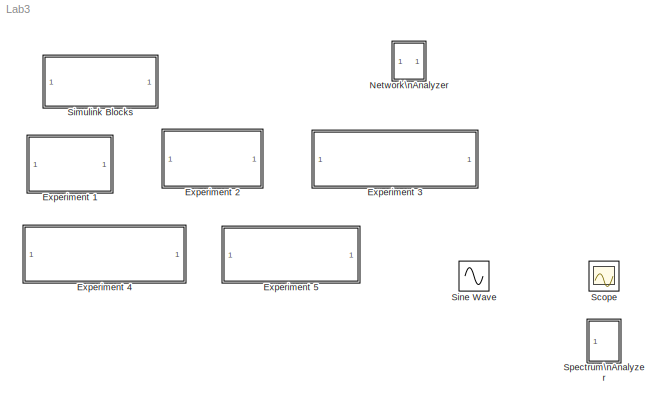
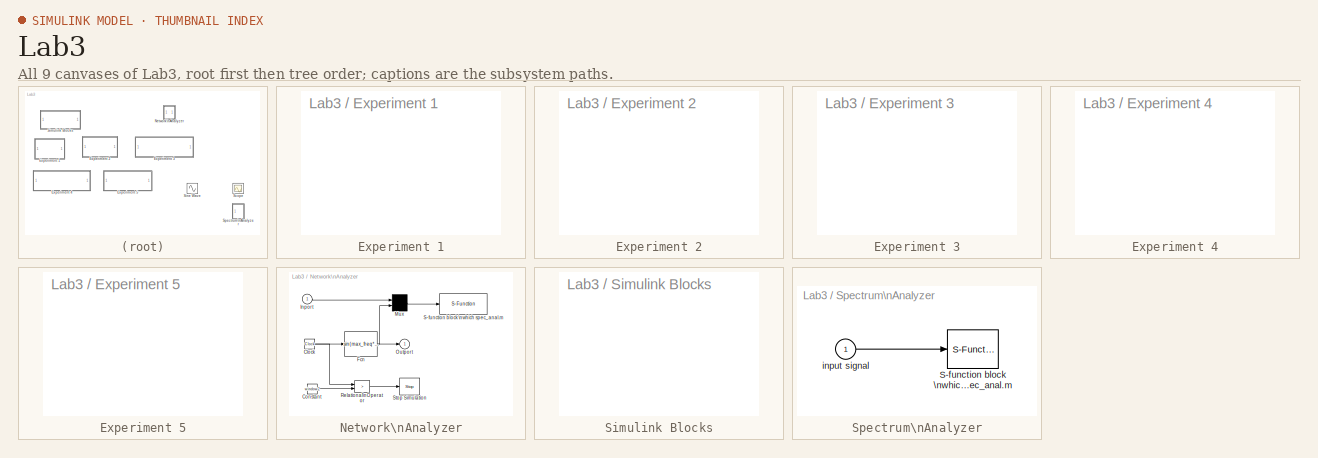
[diagram: thumbnail index - all 9 canvases of the model, root first then tree order]
MODEL Lab3
KIND model
BLOCK [SubSystem] Experiment 1
  OpenFcn = lab3Synth
  Ports = []
  RequestExecContextInheritance = off
  SID = 1
BLOCK [SubSystem] Experiment 2
  OpenFcn = lab3Mod
  Ports = []
  RequestExecContextInheritance = off
  SID = 2
BLOCK [SubSystem] Experiment 3
  OpenFcn = lab3CTSys1
  Ports = []
  RequestExecContextInheritance = off
  SID = 3
BLOCK [SubSystem] Experiment 4
  OpenFcn = lab3CTSys2
  Ports = []
  RequestExecContextInheritance = off
  SID = 4
BLOCK [SubSystem] Experiment 5
  OpenFcn = lab3DTSys
  Ports = []
  RequestExecContextInheritance = off
  SID = 5
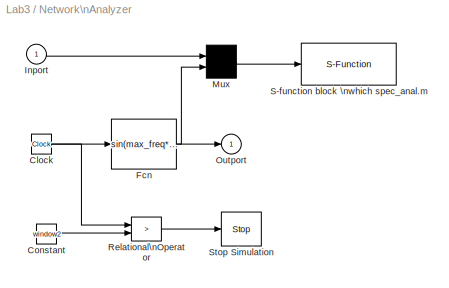
BLOCK [SubSystem] Network\nAnalyzer
  Ports = [1, 1]
  RequestExecContextInheritance = off
  SID = 6
  ShowPortLabels = none
BLOCK [Clock] Network\nAnalyzer/Clock
  SID = 8
BLOCK [Constant] Network\nAnalyzer/Constant
  SID = 9
  Value = window2
BLOCK [Fcn] Network\nAnalyzer/Fcn
  Expr = sin(max_freq*u*u/(2*window1))*(0.54+0.46*cos(pi*u/window1))*(u<window1)
  SID = 10
BLOCK [Inport] Network\nAnalyzer/Inport
  SID = 7
BLOCK [Mux] Network\nAnalyzer/Mux
  Inputs = 2
  Ports = [2, 1]
  SID = 11
BLOCK [Outport] Network\nAnalyzer/Outport
  InitialOutput = 0
  SID = 15
  VectorParamsAs1DForOutWhenUnconnected = off
BLOCK [RelationalOperator] Network\nAnalyzer/Relational\nOperator
  Operator = >
  Ports = [2, 1]
  SID = 12
BLOCK [S-Function] Network\nAnalyzer/S-function block \nwhich spec_anal.m
  EnableBusSupport = off
  FunctionName = NetAnal
  Parameters = N,T_s
  Ports = [1, 1]
  SFcnIsStateOwnerBlock = off
  SFunctionDeploymentMode = off
  SID = 13
BLOCK [Stop] Network\nAnalyzer/Stop Simulation
  SID = 14
BLOCK [Scope] Scope
  Floating = off
  NumInputPorts = 1
  Ports = [1]
  SID = 16
  ScopeSpecificationString = Simulink.scopes.TimeScopeBlockCfg('CurrentConfiguration', extmgr.ConfigurationSet(extmgr.Configuration('Core','General UI',true),extmgr.Configuration('Core','Source UI',true),extmgr.Configuration('Sources','WiredSimulink',true,'DataLoggingSaveFormat','Array','DataLoggingLimitDataPoints',true,'DataLoggingDecimation','1','DataLoggingDecimateData',true),extmgr.Configuration('Visuals','Time Domain',tr...<+883ch>
BLOCK [SubSystem] Simulink Blocks
  OpenFcn = simulink
  Ports = []
  RequestExecContextInheritance = off
  SID = 17
BLOCK [Sin] Sine Wave
  Ports = [0, 1]
  SID = 18
  SampleTime = 0
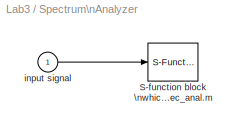
BLOCK [SubSystem] Spectrum\nAnalyzer
  Ports = [1]
  RequestExecContextInheritance = off
  SID = 19
  ShowPortLabels = none
BLOCK [S-Function] Spectrum\nAnalyzer/S-function block \nwhich spec_anal.m
  EnableBusSupport = off
  FunctionName = SpecAnal
  Parameters = N,T_s,plot_period
  Ports = [1, 1]
  SFcnIsStateOwnerBlock = off
  SFunctionDeploymentMode = off
  SID = 21
BLOCK [Inport] Spectrum\nAnalyzer/input signal
  SID = 20
NET Network\nAnalyzer/Clock:1 -> Network\nAnalyzer/Fcn:1, Network\nAnalyzer/Relational\nOperator:1
LINE Network\nAnalyzer/Constant:1 -> Network\nAnalyzer/Relational\nOperator:2
NET Network\nAnalyzer/Fcn:1 -> Network\nAnalyzer/Mux:2, Network\nAnalyzer/Outport:1
LINE Network\nAnalyzer/Inport:1 -> Network\nAnalyzer/Mux:1
LINE Network\nAnalyzer/Mux:1 -> Network\nAnalyzer/S-function block \nwhich spec_anal.m:1
LINE Network\nAnalyzer/Relational\nOperator:1 -> Network\nAnalyzer/Stop Simulation:1
LINE Spectrum\nAnalyzer/input signal:1 -> Spectrum\nAnalyzer/S-function block \nwhich spec_anal.m:1
note: NET lines group one-source signal fan-out (src -> all destinations, sorted); 1:1 wires keep LINE
